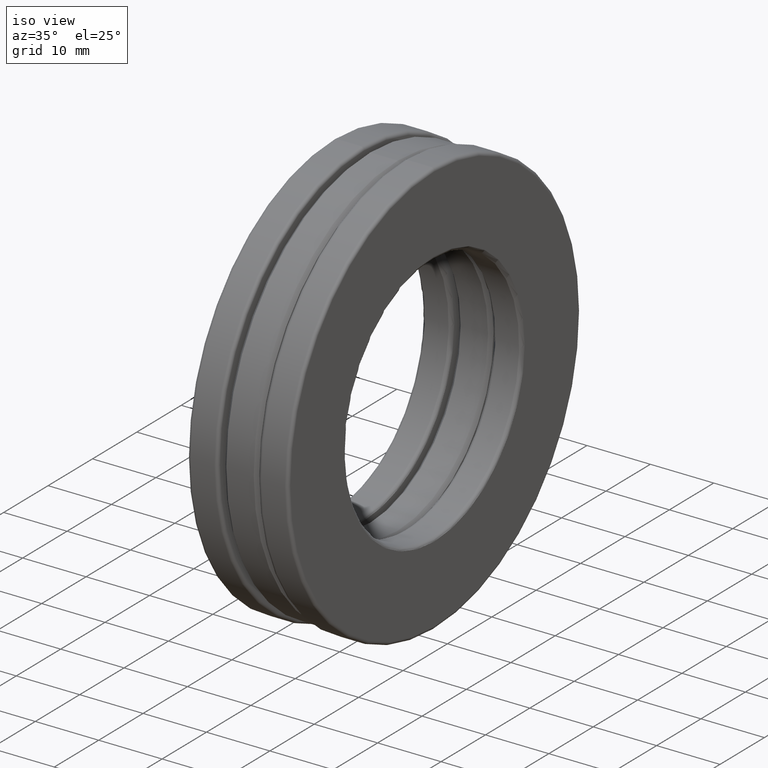
[diagram: clean part render]
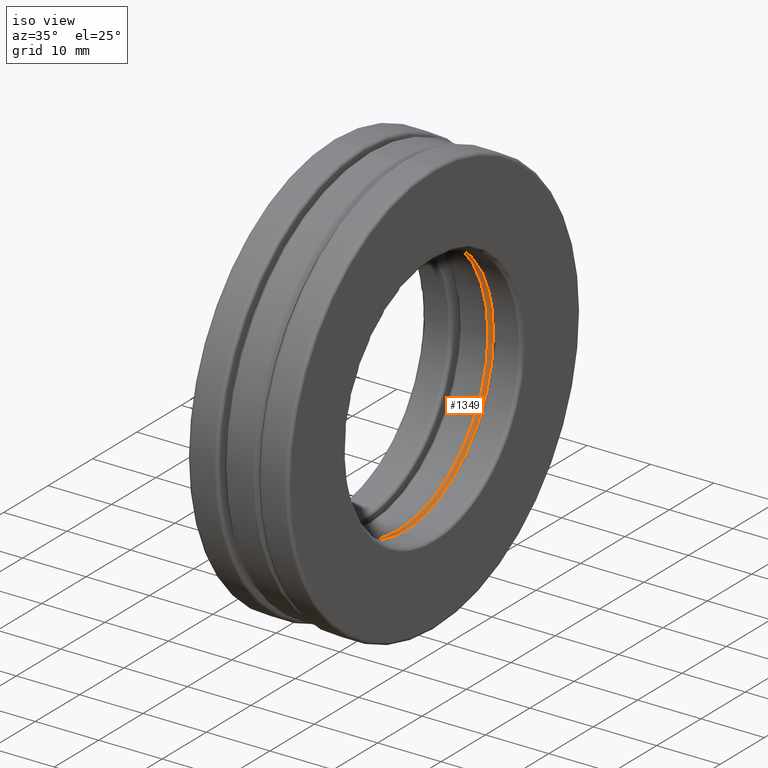
[diagram: same view with one face highlighted and labeled with its STEP entity id]
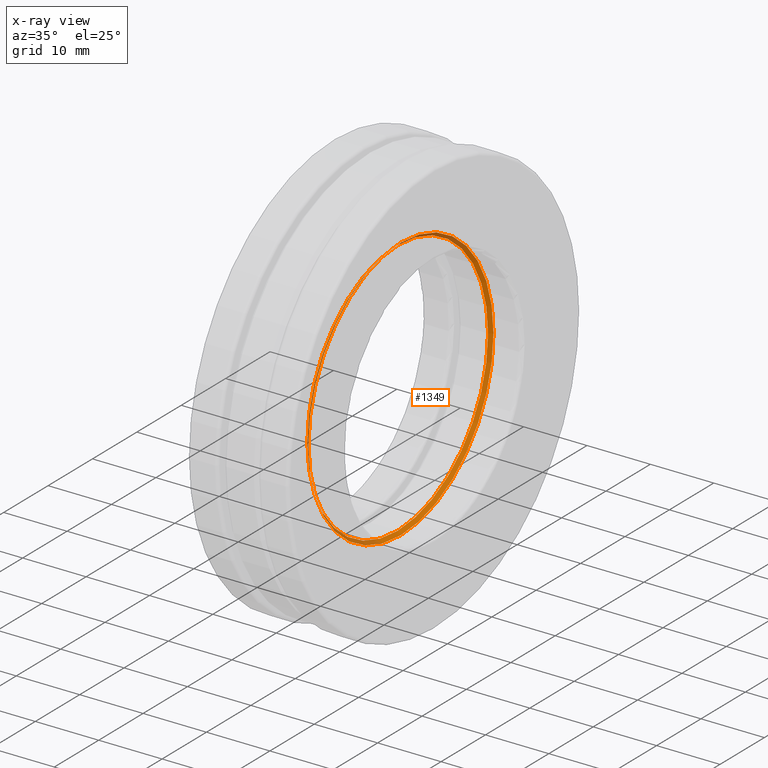
[diagram: x-ray of the same camera — body ghosted, the highlighted face saturated]
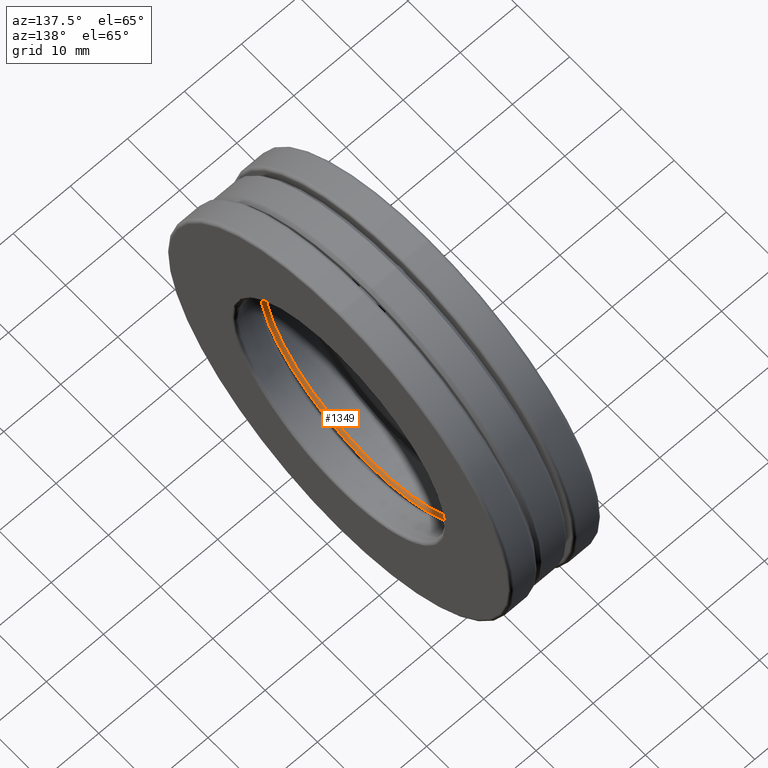
[diagram: same view with one face highlighted and labeled with its STEP entity id]
A machine part, iso view. The second image highlights one B-rep face of the part: STEP entity #1349.
The next image is the same camera in x-ray: the body ghosted, the highlighted face saturated — about 17% of this face is hidden behind the body in this view.
A second angle (auxiliary view) of the same face is appended — the face is thin or edge-on in the first view.
In plain terms, the highlighted conical surface has half-angle 45 deg.
Its self-contained STEP definition (entity closure, byte-faithful):
#50 = DIRECTION ( 'NONE',  ( 1.000000000000000000, 0.0000000000000000000, 0.0000000000000000000 ) ) ;
#86 = VERTEX_POINT ( 'NONE', #771 ) ;
#88 = CARTESIAN_POINT ( 'NONE',  ( 0.1050000000000000400, 0.0000000000000000000, 0.0000000000000000000 ) ) ;
#215 = CONICAL_SURFACE ( 'NONE', #1115, 0.8212500000000001500, 0.7853981633974500600 ) ;
#360 = EDGE_CURVE ( 'NONE', #763, #763, #1019, .T. ) ;
#498 = FACE_OUTER_BOUND ( 'NONE', #806, .T. ) ;
#504 = CARTESIAN_POINT ( 'NONE',  ( 0.1050000000000000400, 0.0000000000000000000, 0.0000000000000000000 ) ) ;
#612 = FACE_BOUND ( 'NONE', #1463, .T. ) ;
#645 = DIRECTION ( 'NONE',  ( 0.0000000000000000000, 0.0000000000000000000, 1.000000000000000000 ) ) ;
#763 = VERTEX_POINT ( 'NONE', #794 ) ;
#771 = CARTESIAN_POINT ( 'NONE',  ( 0.08500000000000004800, 0.0000000000000000000, 0.8012500000000001300 ) ) ;
#794 = CARTESIAN_POINT ( 'NONE',  ( 0.1050000000000000400, 0.0000000000000000000, 0.8212500000000001500 ) ) ;
#806 = EDGE_LOOP ( 'NONE', ( #881 ) ) ;
#881 = ORIENTED_EDGE ( 'NONE', *, *, #360, .F. ) ;
#1019 = CIRCLE ( 'NONE', #1457, 0.8212500000000001500 ) ;
#1056 = DIRECTION ( 'NONE',  ( 0.0000000000000000000, 0.0000000000000000000, -1.000000000000000000 ) ) ;
#1073 = DIRECTION ( 'NONE',  ( 0.0000000000000000000, 0.0000000000000000000, 1.000000000000000000 ) ) ;
#1082 = CARTESIAN_POINT ( 'NONE',  ( 0.08500000000000004800, 0.0000000000000000000, 0.0000000000000000000 ) ) ;
#1115 = AXIS2_PLACEMENT_3D ( 'NONE', #504, #50, #1056 ) ;
#1202 = AXIS2_PLACEMENT_3D ( 'NONE', #1082, #1322, #1073 ) ;
#1218 = EDGE_CURVE ( 'NONE', #86, #86, #1379, .T. ) ;
#1226 = DIRECTION ( 'NONE',  ( -1.000000000000000000, -0.0000000000000000000, -0.0000000000000000000 ) ) ;
#1322 = DIRECTION ( 'NONE',  ( -1.000000000000000000, -0.0000000000000000000, -0.0000000000000000000 ) ) ;
#1349 = ADVANCED_FACE ( 'NONE', ( #612, #498 ), #215, .F. ) ;
#1379 = CIRCLE ( 'NONE', #1202, 0.8012500000000001300 ) ;
#1387 = ORIENTED_EDGE ( 'NONE', *, *, #1218, .T. ) ;
#1457 = AXIS2_PLACEMENT_3D ( 'NONE', #88, #1226, #645 ) ;
#1463 = EDGE_LOOP ( 'NONE', ( #1387 ) ) ;